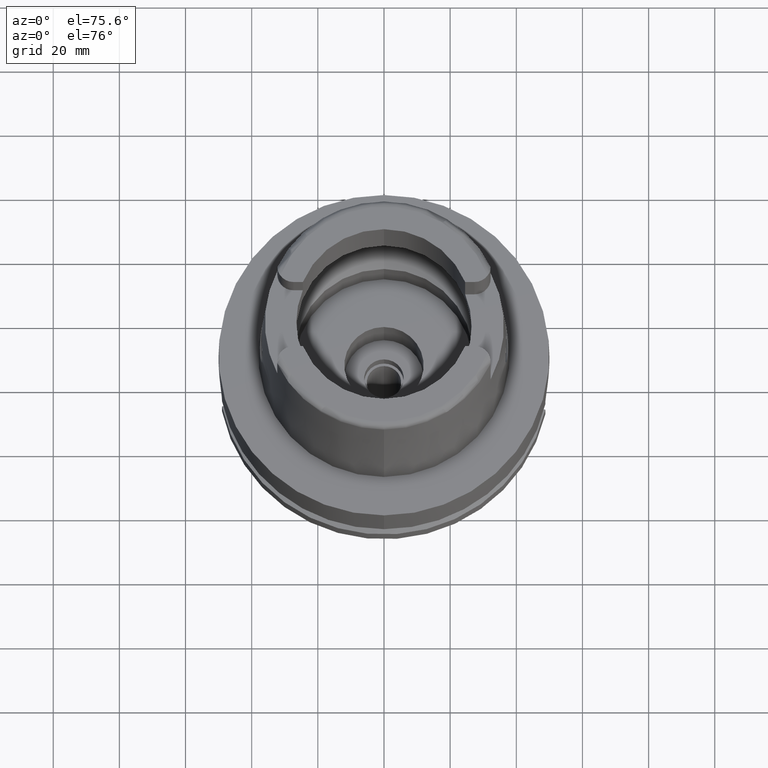
[diagram: clean part render]
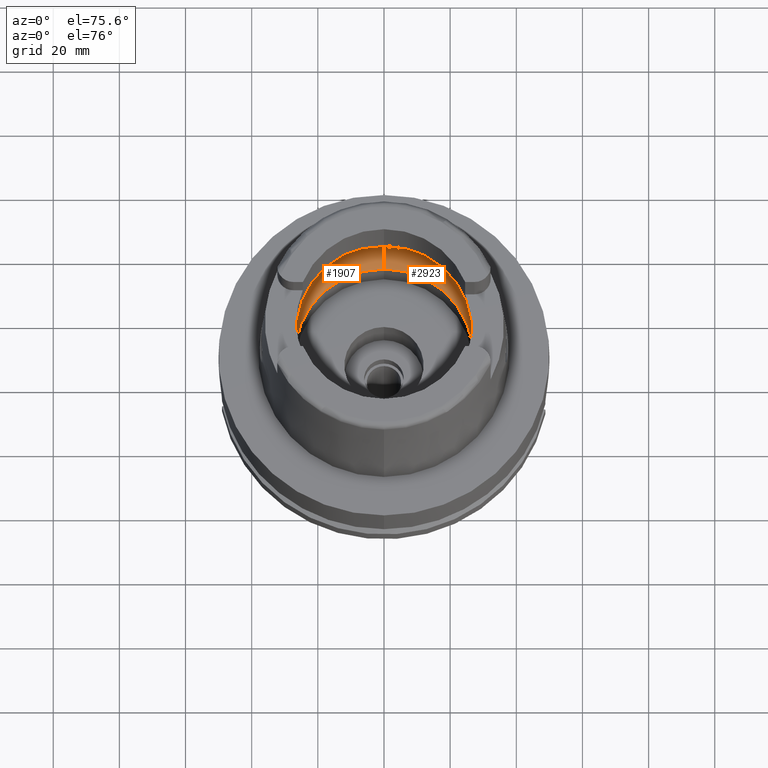
[diagram: same view with one multi-face feature highlighted, each face labeled with its STEP entity id]
A machine part, auxiliary view. The highlighted faces form ONE feature: a constant-radius fillet chain: 2 tangent blend faces with common blend radius 12 mm. The faces share edges in the B-rep.
Their STEP definitions:
[1] entity #1907 (Torus):
#81 = CARTESIAN_POINT ( 'NONE',  ( 0.0000000000000000000, 31.50000000000000000, 9.496624327025999790 ) ) ;
#171 = ORIENTED_EDGE ( 'NONE', *, *, #1778, .F. ) ;
#181 = VERTEX_POINT ( 'NONE', #1996 ) ;
#252 = ORIENTED_EDGE ( 'NONE', *, *, #571, .F. ) ;
#323 = CARTESIAN_POINT ( 'NONE',  ( 0.0000000000000000000, -26.89999999999999858, 0.04993178413037000635 ) ) ;
#452 = CIRCLE ( 'NONE', #1891, 31.50000000000000000 ) ;
#511 = EDGE_CURVE ( 'NONE', #181, #1909, #5276, .T. ) ;
#546 = AXIS2_PLACEMENT_3D ( 'NONE', #3530, #4827, #1367 ) ;
#571 = EDGE_CURVE ( 'NONE', #1909, #3177, #2905, .T. ) ;
#591 = CARTESIAN_POINT ( 'NONE',  ( 0.0000000000000000000, -19.50000000000000000, 9.496624327025999790 ) ) ;
#704 = EDGE_CURVE ( 'NONE', #742, #2794, #5280, .T. ) ;
#742 = VERTEX_POINT ( 'NONE', #3859 ) ;
#906 = AXIS2_PLACEMENT_3D ( 'NONE', #591, #4039, #2428 ) ;
#928 = FACE_OUTER_BOUND ( 'NONE', #1533, .T. ) ;
#1038 = VERTEX_POINT ( 'NONE', #5267 ) ;
#1144 = ORIENTED_EDGE ( 'NONE', *, *, #3330, .T. ) ;
#1367 = DIRECTION ( 'NONE',  ( 0.0000000000000000000, 1.000000000000000000, 0.0000000000000000000 ) ) ;
#1437 = CARTESIAN_POINT ( 'NONE',  ( -31.46287568614665986, 1.684656699916923683, 9.190219624986275093 ) ) ;
#1490 = DIRECTION ( 'NONE',  ( 0.0000000000000000000, -1.000000000000000000, 0.0000000000000000000 ) ) ;
#1533 = EDGE_LOOP ( 'NONE', ( #3380, #171, #2062, #1144, #252, #3633, #4071 ) ) ;
#1596 = CARTESIAN_POINT ( 'NONE',  ( 0.0000000000000000000, -31.50000000000000000, 9.496624327025999790 ) ) ;
#1729 = EDGE_CURVE ( 'NONE', #1038, #181, #4600, .T. ) ;
#1730 = EDGE_CURVE ( 'NONE', #5348, #1038, #452, .T. ) ;
#1747 = CARTESIAN_POINT ( 'NONE',  ( 0.0000000000000000000, 0.0000000000000000000, 9.496624327025999790 ) ) ;
#1778 = EDGE_CURVE ( 'NONE', #2794, #5348, #4763, .T. ) ;
#1891 = AXIS2_PLACEMENT_3D ( 'NONE', #1747, #2797, #1490 ) ;
#1897 = DIRECTION ( 'NONE',  ( -0.9971171061384286327, 0.07587803796966216541, 0.0000000000000000000 ) ) ;
#1907 = ADVANCED_FACE ( 'NONE', ( #928 ), #3425, .F. ) ;
#1909 = VERTEX_POINT ( 'NONE', #3509 ) ;
#1996 = CARTESIAN_POINT ( 'NONE',  ( -31.48971910754000447, 0.0000000000000000000, 9.000000000000000000 ) ) ;
#2062 = ORIENTED_EDGE ( 'NONE', *, *, #704, .F. ) ;
#2179 = AXIS2_PLACEMENT_3D ( 'NONE', #2806, #4957, #1897 ) ;
#2338 = CARTESIAN_POINT ( 'NONE',  ( -31.48971910754000447, -0.8697454018008697885, 8.999999999999998224 ) ) ;
#2428 = DIRECTION ( 'NONE',  ( 0.0000000000000000000, -0.6166666666667049990, -0.7872243785746061429 ) ) ;
#2721 = CARTESIAN_POINT ( 'NONE',  ( -31.48971910754000447, 0.0000000000000000000, 9.000000000000000000 ) ) ;
#2794 = VERTEX_POINT ( 'NONE', #323 ) ;
#2797 = DIRECTION ( 'NONE',  ( 0.0000000000000000000, 0.0000000000000000000, -1.000000000000000000 ) ) ;
#2806 = CARTESIAN_POINT ( 'NONE',  ( 0.0000000000000000000, 0.0000000000000000000, 9.496624327025999790 ) ) ;
#2861 = CARTESIAN_POINT ( 'NONE',  ( -31.48971910754000447, 0.0000000000000000000, 9.000000000000000000 ) ) ;
#2883 = AXIS2_PLACEMENT_3D ( 'NONE', #3603, #5317, #4471 ) ;
#2905 = CIRCLE ( 'NONE', #2179, 31.50000000000001421 ) ;
#3177 = VERTEX_POINT ( 'NONE', #81 ) ;
#3245 = CARTESIAN_POINT ( 'NONE',  ( -31.46287568614665986, -1.684656700029165899, 9.190219625035021878 ) ) ;
#3330 = EDGE_CURVE ( 'NONE', #742, #3177, #4997, .T. ) ;
#3380 = ORIENTED_EDGE ( 'NONE', *, *, #1730, .F. ) ;
#3425 = TOROIDAL_SURFACE ( 'NONE', #546, 19.50000000000000000, 12.00000000000000000 ) ;
#3467 = CARTESIAN_POINT ( 'NONE',  ( -31.40918884336000616, -2.390158196043999705, 9.496624327025999790 ) ) ;
#3509 = CARTESIAN_POINT ( 'NONE',  ( -31.40918884336000616, 2.390158196043999705, 9.496624327025999790 ) ) ;
#3530 = CARTESIAN_POINT ( 'NONE',  ( 0.0000000000000000000, 0.0000000000000000000, 9.496624327025999790 ) ) ;
#3603 = CARTESIAN_POINT ( 'NONE',  ( 0.0000000000000000000, 0.0000000000000000000, 0.04993178413037000635 ) ) ;
#3633 = ORIENTED_EDGE ( 'NONE', *, *, #511, .F. ) ;
#3859 = CARTESIAN_POINT ( 'NONE',  ( 0.0000000000000000000, 26.89999999999999858, 0.04993178413037000635 ) ) ;
#4039 = DIRECTION ( 'NONE',  ( -1.000000000000000000, 0.0000000000000000000, 0.0000000000000000000 ) ) ;
#4071 = ORIENTED_EDGE ( 'NONE', *, *, #1729, .F. ) ;
#4177 = DIRECTION ( 'NONE',  ( 1.000000000000000000, 0.0000000000000000000, 0.0000000000000000000 ) ) ;
#4411 = CARTESIAN_POINT ( 'NONE',  ( -31.40918884336000616, 2.390158196043999705, 9.496624327025999790 ) ) ;
#4471 = DIRECTION ( 'NONE',  ( 0.0000000000000000000, 1.000000000000000000, 0.0000000000000000000 ) ) ;
#4546 = AXIS2_PLACEMENT_3D ( 'NONE', #5087, #4177, #5033 ) ;
#4600 = B_SPLINE_CURVE_WITH_KNOTS ( 'NONE', 3,
 ( #3467, #3245, #2338, #2861 ),
 .UNSPECIFIED., .F., .F.,
 ( 4, 4 ),
 ( 0.0000000000000000000, 1.000000000000000000 ),
 .UNSPECIFIED. ) ;
#4763 = CIRCLE ( 'NONE', #906, 11.99999999999999822 ) ;
#4827 = DIRECTION ( 'NONE',  ( 0.0000000000000000000, 0.0000000000000000000, 1.000000000000000000 ) ) ;
#4957 = DIRECTION ( 'NONE',  ( 0.0000000000000000000, 0.0000000000000000000, -1.000000000000000000 ) ) ;
#4997 = CIRCLE ( 'NONE', #4546, 11.99999999999999822 ) ;
#5033 = DIRECTION ( 'NONE',  ( 0.0000000000000000000, 0.6166666666667049990, -0.7872243785746061429 ) ) ;
#5087 = CARTESIAN_POINT ( 'NONE',  ( 0.0000000000000000000, 19.50000000000000000, 9.496624327025999790 ) ) ;
#5230 = CARTESIAN_POINT ( 'NONE',  ( -31.48971910754000447, 0.8697454016785111097, 9.000000000000001776 ) ) ;
#5267 = CARTESIAN_POINT ( 'NONE',  ( -31.40918884336000616, -2.390158196043999705, 9.496624327025999790 ) ) ;
#5276 = B_SPLINE_CURVE_WITH_KNOTS ( 'NONE', 3,
 ( #2721, #5230, #1437, #4411 ),
 .UNSPECIFIED., .F., .F.,
 ( 4, 4 ),
 ( 0.0000000000000000000, 1.000000000000000000 ),
 .UNSPECIFIED. ) ;
#5280 = CIRCLE ( 'NONE', #2883, 26.89999999999999858 ) ;
#5317 = DIRECTION ( 'NONE',  ( 0.0000000000000000000, 0.0000000000000000000, 1.000000000000000000 ) ) ;
#5348 = VERTEX_POINT ( 'NONE', #1596 ) ;
[2] entity #2923 (Torus):
#81 = CARTESIAN_POINT ( 'NONE',  ( 0.0000000000000000000, 31.50000000000000000, 9.496624327025999790 ) ) ;
#188 = EDGE_CURVE ( 'NONE', #2794, #742, #5301, .T. ) ;
#229 = VERTEX_POINT ( 'NONE', #2500 ) ;
#323 = CARTESIAN_POINT ( 'NONE',  ( 0.0000000000000000000, -26.89999999999999858, 0.04993178413037000635 ) ) ;
#462 = ORIENTED_EDGE ( 'NONE', *, *, #2811, .F. ) ;
#591 = CARTESIAN_POINT ( 'NONE',  ( 0.0000000000000000000, -19.50000000000000000, 9.496624327025999790 ) ) ;
#742 = VERTEX_POINT ( 'NONE', #3859 ) ;
#757 = CARTESIAN_POINT ( 'NONE',  ( 31.46287568614665986, 1.684656700008886121, 9.190219625026216477 ) ) ;
#814 = CARTESIAN_POINT ( 'NONE',  ( 31.40918884336000616, -2.390158196043999705, 9.496624327025999790 ) ) ;
#906 = AXIS2_PLACEMENT_3D ( 'NONE', #591, #4039, #2428 ) ;
#920 = CARTESIAN_POINT ( 'NONE',  ( 0.0000000000000000000, 0.0000000000000000000, 9.496624327025999790 ) ) ;
#932 = VERTEX_POINT ( 'NONE', #3927 ) ;
#1189 = CARTESIAN_POINT ( 'NONE',  ( 0.0000000000000000000, 0.0000000000000000000, 9.496624327025999790 ) ) ;
#1196 = CARTESIAN_POINT ( 'NONE',  ( 31.48971910754000447, 0.0000000000000000000, 9.000000000000000000 ) ) ;
#1214 = ORIENTED_EDGE ( 'NONE', *, *, #3330, .F. ) ;
#1246 = EDGE_CURVE ( 'NONE', #4359, #229, #4730, .T. ) ;
#1394 = ORIENTED_EDGE ( 'NONE', *, *, #4367, .F. ) ;
#1596 = CARTESIAN_POINT ( 'NONE',  ( 0.0000000000000000000, -31.50000000000000000, 9.496624327025999790 ) ) ;
#1624 = AXIS2_PLACEMENT_3D ( 'NONE', #2529, #2504, #3262 ) ;
#1778 = EDGE_CURVE ( 'NONE', #2794, #5348, #4763, .T. ) ;
#2428 = DIRECTION ( 'NONE',  ( 0.0000000000000000000, -0.6166666666667049990, -0.7872243785746061429 ) ) ;
#2453 = ORIENTED_EDGE ( 'NONE', *, *, #3576, .F. ) ;
#2474 = CARTESIAN_POINT ( 'NONE',  ( 31.48971910753999026, -0.8697454017312684638, 8.999999999999998224 ) ) ;
#2500 = CARTESIAN_POINT ( 'NONE',  ( 31.40918884336000616, -2.390158196043999705, 9.496624327025999790 ) ) ;
#2504 = DIRECTION ( 'NONE',  ( 0.0000000000000000000, 0.0000000000000000000, 1.000000000000000000 ) ) ;
#2509 = CARTESIAN_POINT ( 'NONE',  ( 31.40918884336000616, 2.390158196043999705, 9.496624327025999790 ) ) ;
#2529 = CARTESIAN_POINT ( 'NONE',  ( 0.0000000000000000000, 0.0000000000000000000, 0.04993178413037000635 ) ) ;
#2581 = CIRCLE ( 'NONE', #3639, 31.50000000000000000 ) ;
#2675 = CIRCLE ( 'NONE', #4091, 31.49999999999998934 ) ;
#2754 = TOROIDAL_SURFACE ( 'NONE', #4994, 19.50000000000000000, 12.00000000000000000 ) ;
#2794 = VERTEX_POINT ( 'NONE', #323 ) ;
#2811 = EDGE_CURVE ( 'NONE', #3177, #932, #2581, .T. ) ;
#2923 = ADVANCED_FACE ( 'NONE', ( #3044 ), #2754, .F. ) ;
#2936 = CARTESIAN_POINT ( 'NONE',  ( 31.48971910754000447, 0.0000000000000000000, 9.000000000000000000 ) ) ;
#2967 = DIRECTION ( 'NONE',  ( 0.9971171061384295209, -0.07587803796965221503, 0.0000000000000000000 ) ) ;
#3044 = FACE_OUTER_BOUND ( 'NONE', #3662, .T. ) ;
#3177 = VERTEX_POINT ( 'NONE', #81 ) ;
#3262 = DIRECTION ( 'NONE',  ( 0.0000000000000000000, -1.000000000000000000, 0.0000000000000000000 ) ) ;
#3289 = DIRECTION ( 'NONE',  ( 0.0000000000000000000, 1.000000000000000000, 0.0000000000000000000 ) ) ;
#3330 = EDGE_CURVE ( 'NONE', #742, #3177, #4997, .T. ) ;
#3378 = CARTESIAN_POINT ( 'NONE',  ( 31.48971910753999026, 0.8697454017787721314, 9.000000000000001776 ) ) ;
#3504 = CARTESIAN_POINT ( 'NONE',  ( 0.0000000000000000000, 0.0000000000000000000, 9.496624327025999790 ) ) ;
#3576 = EDGE_CURVE ( 'NONE', #229, #5348, #2675, .T. ) ;
#3639 = AXIS2_PLACEMENT_3D ( 'NONE', #1189, #5443, #3289 ) ;
#3662 = EDGE_LOOP ( 'NONE', ( #1394, #462, #1214, #3824, #3753, #2453, #5341 ) ) ;
#3673 = CARTESIAN_POINT ( 'NONE',  ( 31.48971910754000447, 0.0000000000000000000, 9.000000000000000000 ) ) ;
#3753 = ORIENTED_EDGE ( 'NONE', *, *, #1778, .T. ) ;
#3824 = ORIENTED_EDGE ( 'NONE', *, *, #188, .F. ) ;
#3859 = CARTESIAN_POINT ( 'NONE',  ( 0.0000000000000000000, 26.89999999999999858, 0.04993178413037000635 ) ) ;
#3866 = DIRECTION ( 'NONE',  ( 0.0000000000000000000, 1.000000000000000000, 0.0000000000000000000 ) ) ;
#3927 = CARTESIAN_POINT ( 'NONE',  ( 31.40918884336000616, 2.390158196043999705, 9.496624327025999790 ) ) ;
#4039 = DIRECTION ( 'NONE',  ( -1.000000000000000000, 0.0000000000000000000, 0.0000000000000000000 ) ) ;
#4091 = AXIS2_PLACEMENT_3D ( 'NONE', #3504, #5140, #2967 ) ;
#4177 = DIRECTION ( 'NONE',  ( 1.000000000000000000, 0.0000000000000000000, 0.0000000000000000000 ) ) ;
#4359 = VERTEX_POINT ( 'NONE', #1196 ) ;
#4367 = EDGE_CURVE ( 'NONE', #932, #4359, #5034, .T. ) ;
#4546 = AXIS2_PLACEMENT_3D ( 'NONE', #5087, #4177, #5033 ) ;
#4660 = CARTESIAN_POINT ( 'NONE',  ( 31.46287568614665986, -1.684656699965325632, 9.190219625007294724 ) ) ;
#4730 = B_SPLINE_CURVE_WITH_KNOTS ( 'NONE', 3,
 ( #3673, #2474, #4660, #814 ),
 .UNSPECIFIED., .F., .F.,
 ( 4, 4 ),
 ( 0.0000000000000000000, 1.000000000000000000 ),
 .UNSPECIFIED. ) ;
#4763 = CIRCLE ( 'NONE', #906, 11.99999999999999822 ) ;
#4994 = AXIS2_PLACEMENT_3D ( 'NONE', #920, #5160, #3866 ) ;
#4997 = CIRCLE ( 'NONE', #4546, 11.99999999999999822 ) ;
#5033 = DIRECTION ( 'NONE',  ( 0.0000000000000000000, 0.6166666666667049990, -0.7872243785746061429 ) ) ;
#5034 = B_SPLINE_CURVE_WITH_KNOTS ( 'NONE', 3,
 ( #2509, #757, #3378, #2936 ),
 .UNSPECIFIED., .F., .F.,
 ( 4, 4 ),
 ( 0.0000000000000000000, 1.000000000000000000 ),
 .UNSPECIFIED. ) ;
#5087 = CARTESIAN_POINT ( 'NONE',  ( 0.0000000000000000000, 19.50000000000000000, 9.496624327025999790 ) ) ;
#5140 = DIRECTION ( 'NONE',  ( 0.0000000000000000000, 0.0000000000000000000, -1.000000000000000000 ) ) ;
#5160 = DIRECTION ( 'NONE',  ( 0.0000000000000000000, 0.0000000000000000000, 1.000000000000000000 ) ) ;
#5301 = CIRCLE ( 'NONE', #1624, 26.89999999999999858 ) ;
#5341 = ORIENTED_EDGE ( 'NONE', *, *, #1246, .F. ) ;
#5348 = VERTEX_POINT ( 'NONE', #1596 ) ;
#5443 = DIRECTION ( 'NONE',  ( 0.0000000000000000000, 0.0000000000000000000, -1.000000000000000000 ) ) ;